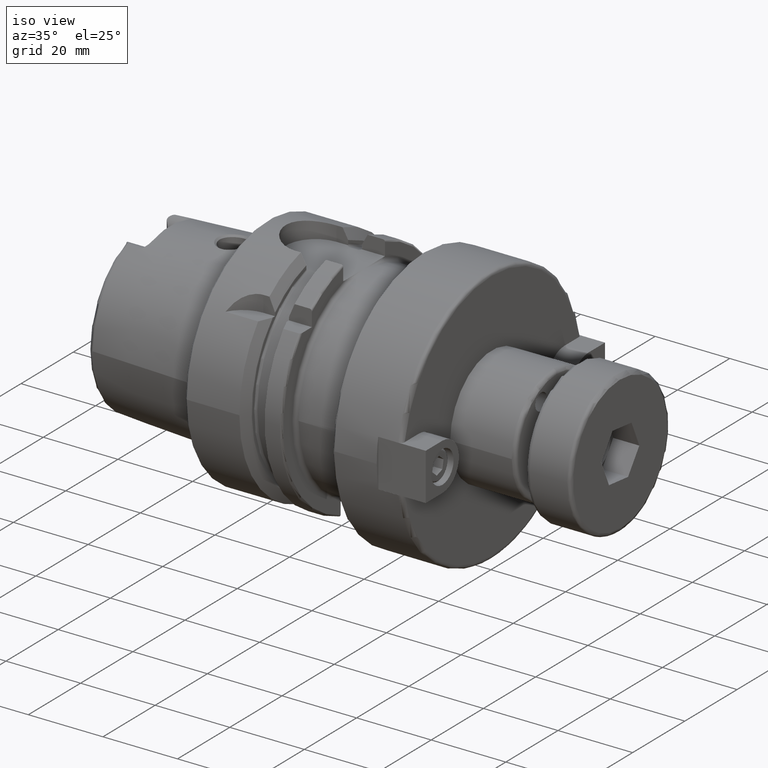
[diagram: clean part render]
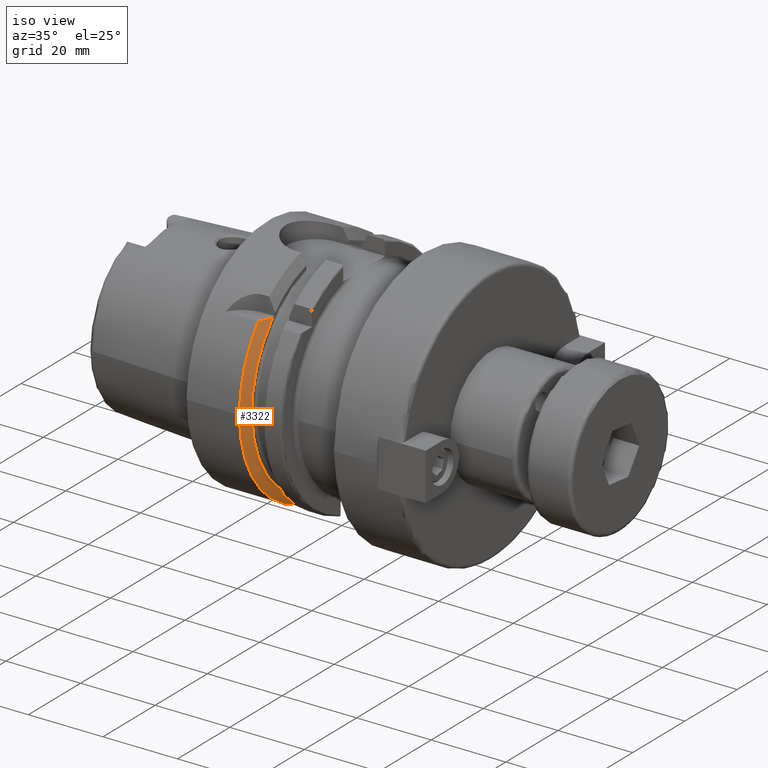
[diagram: same view with one face highlighted and labeled with its STEP entity id]
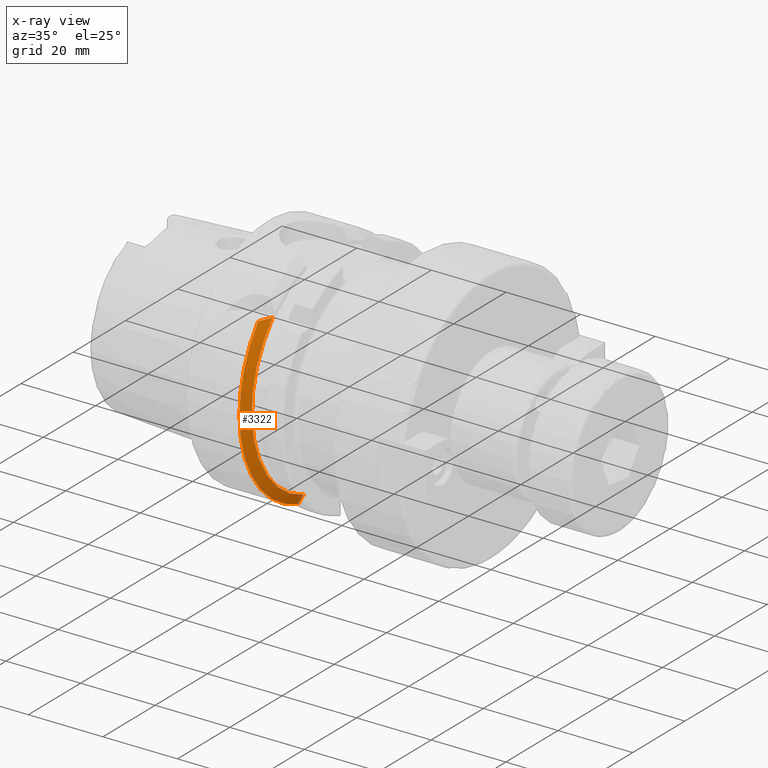
[diagram: x-ray of the same camera — body ghosted, the highlighted face saturated]
A machine part, iso view. The second image highlights one B-rep face of the part: STEP entity #3322.
The next image is the same camera in x-ray: the body ghosted, the highlighted face saturated — about 2% of this face is hidden behind the body in this view.
In plain terms, the highlighted conical surface has half-angle 60 deg.
Its self-contained STEP definition (entity closure, byte-faithful):
#56=(
BOUNDED_CURVE()
B_SPLINE_CURVE(2,(#6321,#6322,#6323),.UNSPECIFIED.,.F.,.F.)
B_SPLINE_CURVE_WITH_KNOTS((3,3),(0.,0.378858277140998),.UNSPECIFIED.)
CURVE()
GEOMETRIC_REPRESENTATION_ITEM()
RATIONAL_B_SPLINE_CURVE((1.,1.00166199353848,1.))
REPRESENTATION_ITEM('')
);
#59=(
BOUNDED_CURVE()
B_SPLINE_CURVE(2,(#6381,#6382,#6383),.UNSPECIFIED.,.F.,.F.)
B_SPLINE_CURVE_WITH_KNOTS((3,3),(0.,0.311314369989023),.UNSPECIFIED.)
CURVE()
GEOMETRIC_REPRESENTATION_ITEM()
RATIONAL_B_SPLINE_CURVE((1.,1.00102053193494,1.))
REPRESENTATION_ITEM('')
);
#751=FACE_OUTER_BOUND('',#959,.T.);
#959=EDGE_LOOP('',(#2617,#2618,#2619,#2620,#2621));
#1183=CIRCLE('',#3722,28.8975952641916);
#1186=CIRCLE('',#3726,31.5);
#1187=CIRCLE('',#3727,31.5);
#1536=VERTEX_POINT('',#6313);
#1539=VERTEX_POINT('',#6319);
#1546=VERTEX_POINT('',#6367);
#1550=VERTEX_POINT('',#6377);
#1551=VERTEX_POINT('',#6379);
#1934=EDGE_CURVE('',#1536,#1539,#56,.T.);
#1944=EDGE_CURVE('',#1536,#1546,#1183,.T.);
#1949=EDGE_CURVE('',#1539,#1550,#1186,.T.);
#1950=EDGE_CURVE('',#1550,#1551,#1187,.T.);
#1951=EDGE_CURVE('',#1551,#1546,#59,.T.);
#2617=ORIENTED_EDGE('',*,*,#1934,.T.);
#2618=ORIENTED_EDGE('',*,*,#1949,.T.);
#2619=ORIENTED_EDGE('',*,*,#1950,.T.);
#2620=ORIENTED_EDGE('',*,*,#1951,.T.);
#2621=ORIENTED_EDGE('',*,*,#1944,.F.);
#3232=CONICAL_SURFACE('',#3725,30.1987976320958,1.0471975511966);
#3322=ADVANCED_FACE('',(#751),#3232,.T.);
#3722=AXIS2_PLACEMENT_3D('',#6368,#4396,#4397);
#3725=AXIS2_PLACEMENT_3D('',#6376,#4404,#4405);
#3726=AXIS2_PLACEMENT_3D('',#6378,#4406,#4407);
#3727=AXIS2_PLACEMENT_3D('',#6380,#4408,#4409);
#4396=DIRECTION('center_axis',(1.,0.,0.));
#4397=DIRECTION('ref_axis',(0.,0.,-1.));
#4404=DIRECTION('center_axis',(-1.,0.,0.));
#4405=DIRECTION('ref_axis',(0.,-0.966819045705046,-0.255462194584608));
#4406=DIRECTION('center_axis',(1.,0.,0.));
#4407=DIRECTION('ref_axis',(0.,0.,-1.));
#4408=DIRECTION('center_axis',(1.,0.,0.));
#4409=DIRECTION('ref_axis',(0.,0.,-1.));
#6313=CARTESIAN_POINT('',(16.125,-20.8583559288126,20.));
#6319=CARTESIAN_POINT('',(14.6225009252407,-24.3361870472759,20.));
#6321=CARTESIAN_POINT('Ctrl Pts',(16.125,-20.8583559288126,20.));
#6322=CARTESIAN_POINT('Ctrl Pts',(15.4315609602333,-22.5223452916163,20.));
#6323=CARTESIAN_POINT('Ctrl Pts',(14.6225009252407,-24.3361870472759,20.));
#6367=CARTESIAN_POINT('',(16.125,-9.,-27.4603534582684));
#6368=CARTESIAN_POINT('Origin',(16.125,0.,0.));
#6376=CARTESIAN_POINT('Origin',(15.3737504626203,0.,0.));
#6377=CARTESIAN_POINT('',(14.6225009252407,-31.5,-3.85763741731416E-15));
#6378=CARTESIAN_POINT('Origin',(14.6225009252407,0.,0.));
#6379=CARTESIAN_POINT('',(14.6225009252407,-9.,-30.1869176962472));
#6380=CARTESIAN_POINT('Origin',(14.6225009252407,0.,0.));
#6381=CARTESIAN_POINT('Ctrl Pts',(14.6225009252407,-9.,-30.1869176962472));
#6382=CARTESIAN_POINT('Ctrl Pts',(15.4092825889741,-9.,-28.7648946319013));
#6383=CARTESIAN_POINT('Ctrl Pts',(16.125,-9.,-27.4603534582684));